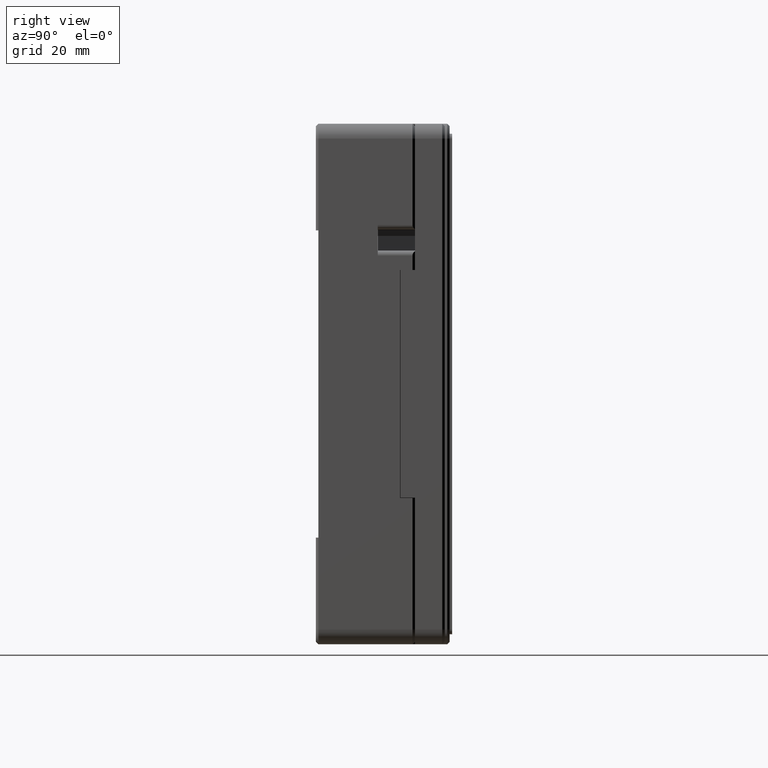
[diagram: clean part render]
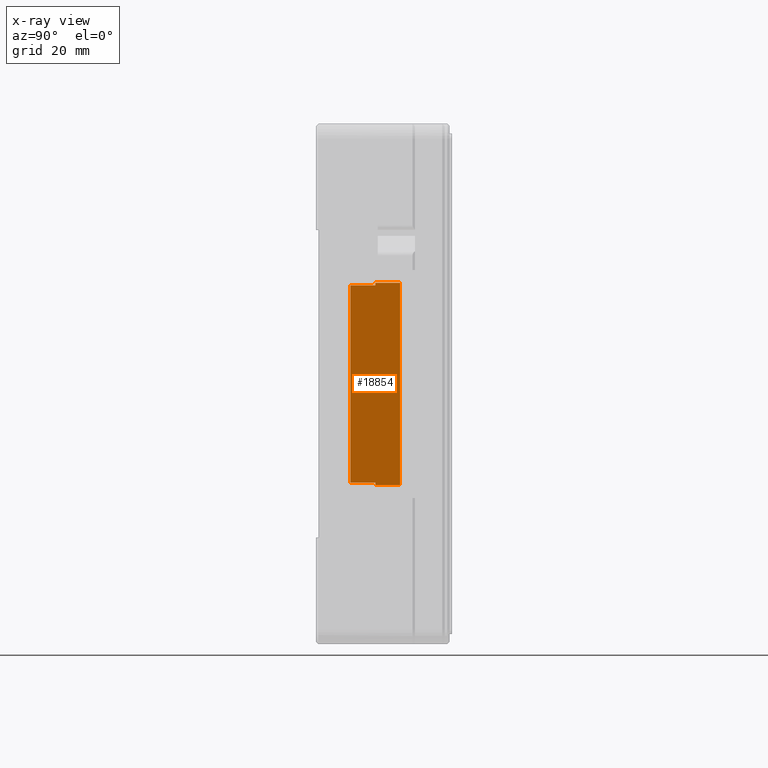
[diagram: x-ray — body ghosted, one internal face saturated and labeled with its STEP entity id]
A machine part, right view, then the same camera in x-ray: the body is ghosted and one INTERNAL B-rep face — a face not visible from any outside direction — is saturated and labeled: STEP entity #18854.
In plain terms, the highlighted planar face has unit normal (1, 0, 0).
Its self-contained STEP definition (entity closure, byte-faithful):
#973 = CARTESIAN_POINT ( 'NONE',  ( 48.00000000000000000, -13.00000000000000000, 19.90000000000000200 ) ) ;
#1152 = VECTOR ( 'NONE', #34191, 1000.000000000000000 ) ;
#1341 = EDGE_CURVE ( 'NONE', #26462, #18289, #3526, .T. ) ;
#1812 = VECTOR ( 'NONE', #16624, 1000.000000000000000 ) ;
#1876 = ORIENTED_EDGE ( 'NONE', *, *, #28647, .T. ) ;
#2959 = LINE ( 'NONE', #45410, #31831 ) ;
#3010 = VECTOR ( 'NONE', #33076, 1000.000000000000000 ) ;
#3526 = LINE ( 'NONE', #35301, #42475 ) ;
#3815 = CARTESIAN_POINT ( 'NONE',  ( 48.00000000000000000, -3.000000000000000000, -20.40000000000000200 ) ) ;
#5504 = VERTEX_POINT ( 'NONE', #3815 ) ;
#7453 = EDGE_CURVE ( 'NONE', #21223, #18289, #11955, .T. ) ;
#7544 = ORIENTED_EDGE ( 'NONE', *, *, #24292, .F. ) ;
#8355 = ORIENTED_EDGE ( 'NONE', *, *, #1341, .T. ) ;
#8654 = CARTESIAN_POINT ( 'NONE',  ( 48.00000000000000000, -8.000000000000000000, 20.40000000000000200 ) ) ;
#9099 = PLANE ( 'NONE',  #10412 ) ;
#10189 = LINE ( 'NONE', #31895, #19025 ) ;
#10412 = AXIS2_PLACEMENT_3D ( 'NONE', #24117, #35484, #12908 ) ;
#10488 = CARTESIAN_POINT ( 'NONE',  ( 48.00000000000000000, -13.00000000000000000, 0.0000000000000000000 ) ) ;
#10608 = CARTESIAN_POINT ( 'NONE',  ( 48.00000000000000000, -8.000000000000000000, -20.40000000000000200 ) ) ;
#11955 = LINE ( 'NONE', #12172, #13139 ) ;
#12009 = VERTEX_POINT ( 'NONE', #8654 ) ;
#12172 = CARTESIAN_POINT ( 'NONE',  ( 48.00000000000000000, -8.000000000000000000, -19.90000000000000200 ) ) ;
#12441 = DIRECTION ( 'NONE',  ( 0.0000000000000000000, 1.000000000000000000, 0.0000000000000000000 ) ) ;
#12857 = CARTESIAN_POINT ( 'NONE',  ( 48.00000000000000000, -8.000000000000000000, 20.40000000000000200 ) ) ;
#12908 = DIRECTION ( 'NONE',  ( 0.0000000000000000000, 0.0000000000000000000, -1.000000000000000000 ) ) ;
#13131 = DIRECTION ( 'NONE',  ( 0.0000000000000000000, 0.0000000000000000000, -1.000000000000000000 ) ) ;
#13139 = VECTOR ( 'NONE', #12441, 1000.000000000000000 ) ;
#14235 = LINE ( 'NONE', #10488, #3010 ) ;
#14365 = CARTESIAN_POINT ( 'NONE',  ( 48.00000000000000000, -3.000000000000000000, 0.0000000000000000000 ) ) ;
#16624 = DIRECTION ( 'NONE',  ( 0.0000000000000000000, -1.000000000000000000, 0.0000000000000000000 ) ) ;
#18289 = VERTEX_POINT ( 'NONE', #29203 ) ;
#18854 = ADVANCED_FACE ( 'NONE', ( #34515 ), #9099, .F. ) ;
#18978 = DIRECTION ( 'NONE',  ( -0.0000000000000000000, 1.000000000000000000, -0.0000000000000000000 ) ) ;
#19025 = VECTOR ( 'NONE', #13131, 1000.000000000000000 ) ;
#19639 = ORIENTED_EDGE ( 'NONE', *, *, #33113, .T. ) ;
#21188 = LINE ( 'NONE', #41309, #1152 ) ;
#21223 = VERTEX_POINT ( 'NONE', #46704 ) ;
#21463 = EDGE_CURVE ( 'NONE', #5504, #39870, #35104, .T. ) ;
#21657 = ORIENTED_EDGE ( 'NONE', *, *, #39885, .F. ) ;
#24117 = CARTESIAN_POINT ( 'NONE',  ( 48.00000000000000000, -13.19999999999999900, 21.21599999999999800 ) ) ;
#24292 = EDGE_CURVE ( 'NONE', #39870, #12009, #30718, .T. ) ;
#25987 = EDGE_CURVE ( 'NONE', #26462, #5504, #21188, .T. ) ;
#26462 = VERTEX_POINT ( 'NONE', #10608 ) ;
#27784 = VERTEX_POINT ( 'NONE', #40147 ) ;
#28647 = EDGE_CURVE ( 'NONE', #21223, #33210, #14235, .T. ) ;
#29203 = CARTESIAN_POINT ( 'NONE',  ( 48.00000000000000000, -8.000000000000000000, -19.90000000000000200 ) ) ;
#30718 = LINE ( 'NONE', #12857, #1812 ) ;
#31831 = VECTOR ( 'NONE', #18978, 1000.000000000000000 ) ;
#31895 = CARTESIAN_POINT ( 'NONE',  ( 48.00000000000000000, -8.000000000000000000, 0.0000000000000000000 ) ) ;
#33076 = DIRECTION ( 'NONE',  ( -0.0000000000000000000, -0.0000000000000000000, 1.000000000000000000 ) ) ;
#33113 = EDGE_CURVE ( 'NONE', #33210, #27784, #2959, .T. ) ;
#33210 = VERTEX_POINT ( 'NONE', #973 ) ;
#33510 = ORIENTED_EDGE ( 'NONE', *, *, #7453, .F. ) ;
#34191 = DIRECTION ( 'NONE',  ( 0.0000000000000000000, 1.000000000000000000, 0.0000000000000000000 ) ) ;
#34515 = FACE_OUTER_BOUND ( 'NONE', #35755, .T. ) ;
#34763 = CARTESIAN_POINT ( 'NONE',  ( 48.00000000000000000, -3.000000000000000000, 20.40000000000000200 ) ) ;
#35104 = LINE ( 'NONE', #14365, #43953 ) ;
#35301 = CARTESIAN_POINT ( 'NONE',  ( 48.00000000000000000, -8.000000000000000000, 0.0000000000000000000 ) ) ;
#35484 = DIRECTION ( 'NONE',  ( 1.000000000000000000, 0.0000000000000000000, 0.0000000000000000000 ) ) ;
#35755 = EDGE_LOOP ( 'NONE', ( #19639, #21657, #7544, #40578, #43468, #8355, #33510, #1876 ) ) ;
#37295 = DIRECTION ( 'NONE',  ( -0.0000000000000000000, -0.0000000000000000000, 1.000000000000000000 ) ) ;
#39870 = VERTEX_POINT ( 'NONE', #34763 ) ;
#39885 = EDGE_CURVE ( 'NONE', #12009, #27784, #10189, .T. ) ;
#40147 = CARTESIAN_POINT ( 'NONE',  ( 48.00000000000000000, -8.000000000000000000, 19.90000000000000200 ) ) ;
#40578 = ORIENTED_EDGE ( 'NONE', *, *, #21463, .F. ) ;
#41309 = CARTESIAN_POINT ( 'NONE',  ( 48.00000000000000000, -8.000000000000000000, -20.40000000000000200 ) ) ;
#42475 = VECTOR ( 'NONE', #37295, 1000.000000000000000 ) ;
#43468 = ORIENTED_EDGE ( 'NONE', *, *, #25987, .F. ) ;
#43953 = VECTOR ( 'NONE', #44543, 1000.000000000000000 ) ;
#44543 = DIRECTION ( 'NONE',  ( 0.0000000000000000000, 0.0000000000000000000, 1.000000000000000000 ) ) ;
#45410 = CARTESIAN_POINT ( 'NONE',  ( 48.00000000000000000, -10.50000000000000000, 19.90000000000000200 ) ) ;
#46704 = CARTESIAN_POINT ( 'NONE',  ( 48.00000000000000000, -13.00000000000000000, -19.90000000000000200 ) ) ;